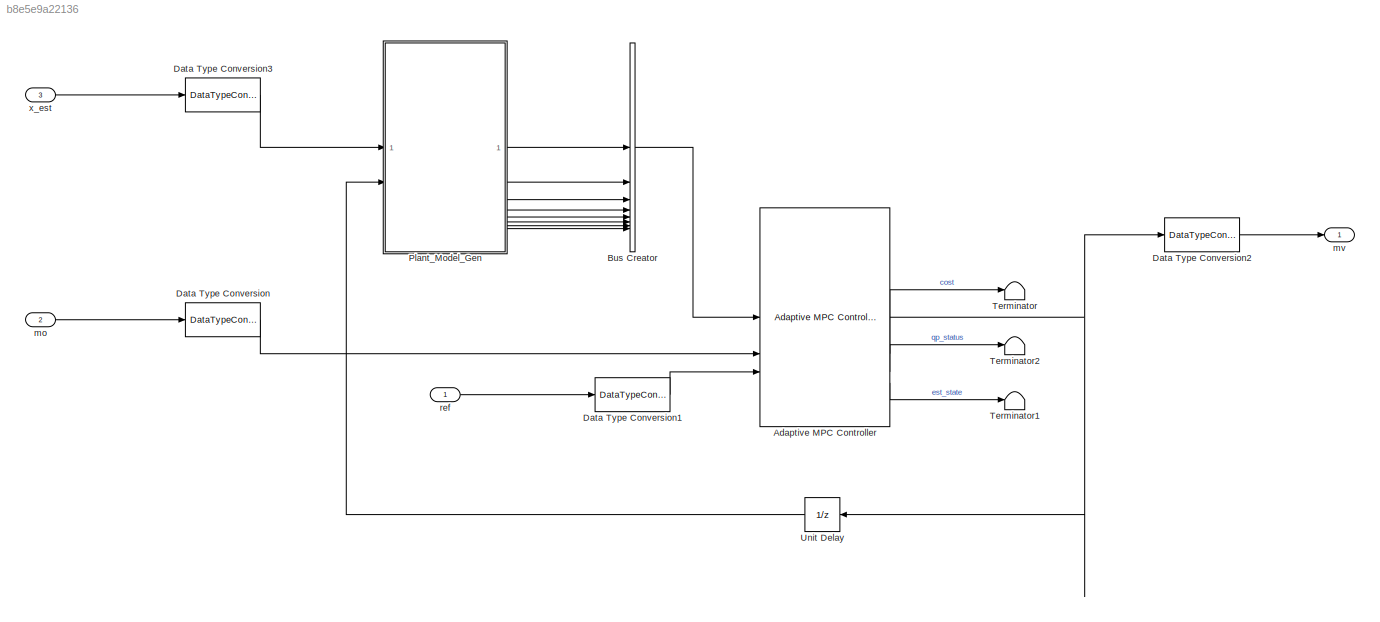
MODEL slx_b8e5e9a22136
KIND model
BLOCK [Reference] Adaptive MPC Controller  REF=mpclib/Adaptive MPC Controller  (lib defined in mdl_ae329e0e0455)
  SCDEnableBlockLinearizationSpecification = on
  SourceBlock = mpclib/Adaptive MPC Controller
  SourceType = Adaptive MPC
BLOCK [BusCreator] Bus Creator
  DisplayOption = bar
  InheritFromInputs = on
  Inputs = 8
BLOCK [DataTypeConversion] Data Type Conversion
  OutDataTypeStr = single
  RndMeth = Floor
  SaturateOnIntegerOverflow = off
BLOCK [DataTypeConversion] Data Type Conversion1
  OutDataTypeStr = single
  RndMeth = Floor
  SaturateOnIntegerOverflow = off
BLOCK [DataTypeConversion] Data Type Conversion2
  OutDataTypeStr = double
  RndMeth = Floor
  SaturateOnIntegerOverflow = off
BLOCK [DataTypeConversion] Data Type Conversion3
  OutDataTypeStr = single
  RndMeth = Floor
  SaturateOnIntegerOverflow = off
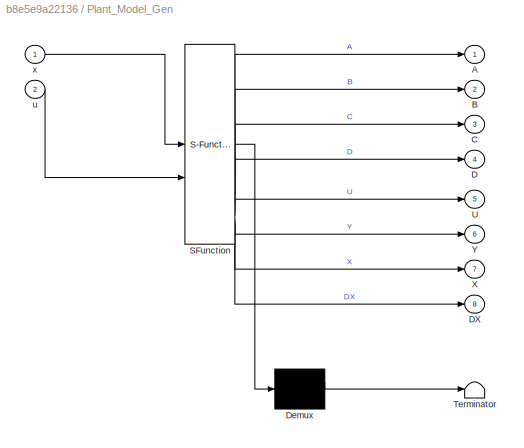
BLOCK [SubSystem] Plant_Model_Gen
  ErrorFcn = Stateflow.Translate.translate
  PermitHierarchicalResolution = ExplicitOnly
  SFBlockType = MATLAB Function
  TreatAsAtomicUnit = on
BLOCK [Demux] Plant_Model_Gen/ Demux 
  Outputs = 1
BLOCK [S-Function] Plant_Model_Gen/ SFunction 
  EnableBusSupport = off
  FunctionName = sf_sfun
  Parameters = I_val,K_f_val,K_r_val,TimeStep,div_min_MPC,l_f_val,l_r_val,m_val
  PortCounts = [2 9]
  SFcnIsStateOwnerBlock = off
  SFunctionDeploymentMode = off
  Tag = Stateflow S-Function 1
BLOCK [Terminator] Plant_Model_Gen/ Terminator 
BLOCK [Outport] Plant_Model_Gen/A
BLOCK [Outport] Plant_Model_Gen/B
  Port = 2
BLOCK [Outport] Plant_Model_Gen/C
  Port = 3
BLOCK [Outport] Plant_Model_Gen/D
  Port = 4
BLOCK [Outport] Plant_Model_Gen/DX
  Port = 8
BLOCK [Outport] Plant_Model_Gen/U
  Port = 5
BLOCK [Outport] Plant_Model_Gen/X
  Port = 7
BLOCK [Outport] Plant_Model_Gen/Y
  Port = 6
BLOCK [Inport] Plant_Model_Gen/u
  Port = 2
BLOCK [Inport] Plant_Model_Gen/x
BLOCK [Terminator] Terminator
BLOCK [Terminator] Terminator1
BLOCK [Terminator] Terminator2
BLOCK [UnitDelay] Unit Delay
  HasFrameUpgradeWarning = on
  InitialCondition = u0
  SampleTime = -1
BLOCK [Inport] mo
  OutDataTypeStr = double
  Port = 2
  PortDimensions = yNum_MPC
  SamplingMode = Sample based
  SignalType = real
BLOCK [Outport] mv
  OutDataTypeStr = double
  PortDimensions = 2
  SamplingMode = Sample based
  SignalType = real
BLOCK [Inport] ref
  OutDataTypeStr = double
  PortDimensions = yNum_MPC
  SamplingMode = Sample based
  SignalType = real
BLOCK [Inport] x_est
  OutDataTypeStr = double
  Port = 3
  PortDimensions = xNum_MPC
  SamplingMode = Sample based
  SignalType = real
NET Adaptive MPC Controller:1 -> Data Type Conversion2:1, Unit Delay:1
LINE Adaptive MPC Controller:2 -> Terminator:1
LINE Adaptive MPC Controller:3 -> Terminator2:1
LINE Adaptive MPC Controller:4 -> Terminator1:1
LINE Bus Creator:1 -> Adaptive MPC Controller:1
LINE Data Type Conversion1:1 -> Adaptive MPC Controller:3
LINE Data Type Conversion2:1 -> mv:1
LINE Data Type Conversion3:1 -> Plant_Model_Gen:1
LINE Data Type Conversion:1 -> Adaptive MPC Controller:2
LINE Plant_Model_Gen:1 -> Bus Creator:1
LINE Plant_Model_Gen:2 -> Bus Creator:2
LINE Plant_Model_Gen:3 -> Bus Creator:3
LINE Plant_Model_Gen:4 -> Bus Creator:4
LINE Plant_Model_Gen:5 -> Bus Creator:5
LINE Plant_Model_Gen:6 -> Bus Creator:6
LINE Plant_Model_Gen:7 -> Bus Creator:7
LINE Plant_Model_Gen:8 -> Bus Creator:8
LINE Unit Delay:1 -> Plant_Model_Gen:2
LINE mo:1 -> Data Type Conversion:1
LINE ref:1 -> Data Type Conversion1:1
LINE x_est:1 -> Data Type Conversion3:1
note: NET lines group one-source signal fan-out (src -> all destinations, sorted); 1:1 wires keep LINE
CHART Plant_Model_Gen states=1 transitions=1
  STATE_LABEL 'eML_blk_kernel()'
  STATE_LABEL "SCRIPT:\nfunction [A, B, C, D, U, Y, X, DX] = Plant_Model_Gen(x, u, TimeStep,...\n    I_val, K_f_val, K_r_val, l_f_val, l_r_val, m_val, div_min_MPC)\n\nts = cast(TimeStep, 'like', x);\n\n[A, B, C, D, U, Y, X, DX] = calc_Discrete_SS_for_Adaptive( ...\n    I_val, K_f_val, K_r_val, l_f_val, l_r_val, m_val, ts, x, u, div_min_MPC);\n\nend\n"
CHART  states=0 transitions=0
